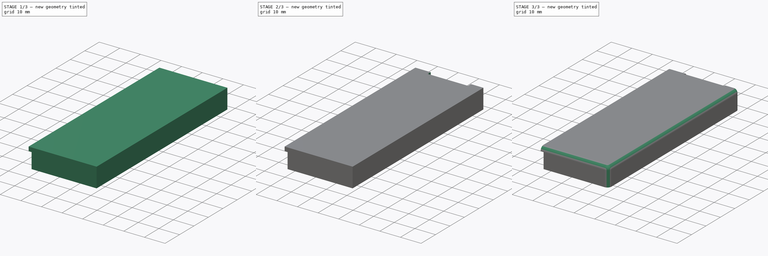
[diagram: build sequence overview — one tinted view per stage of 3, left to right]
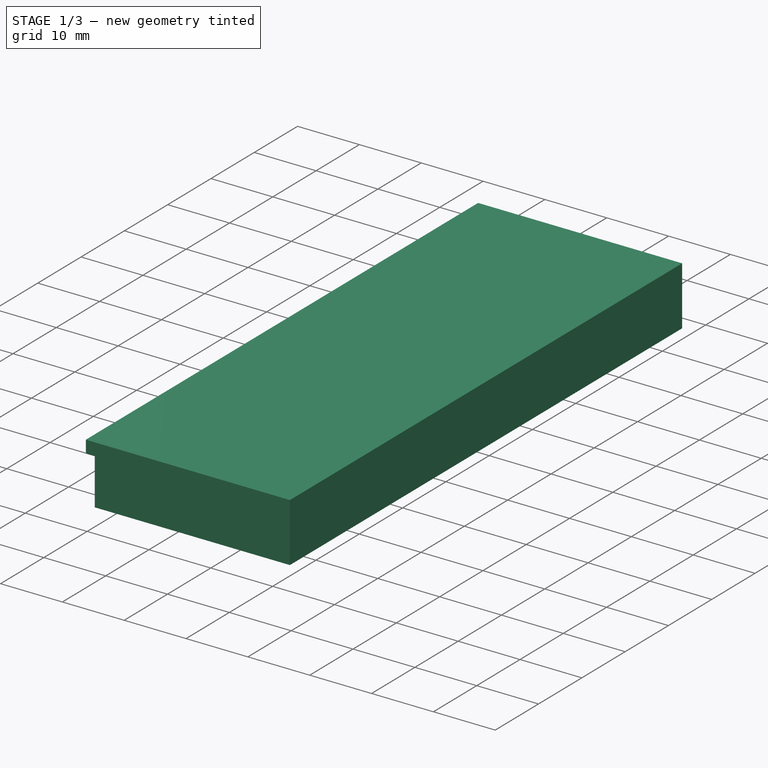
[diagram: stage 1 of 3 — iso view after this stage's code; geometry added in this stage tinted green]
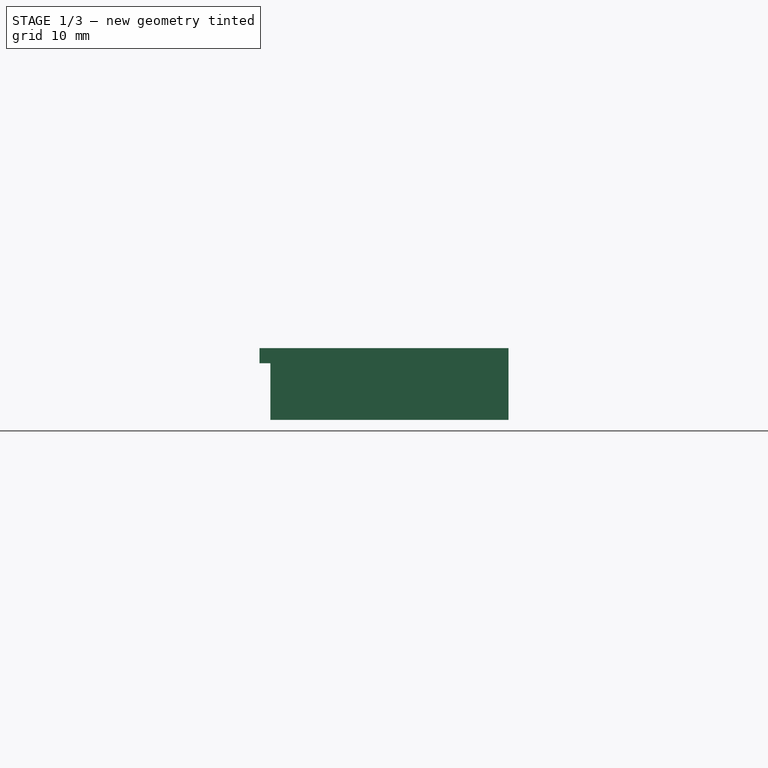
[diagram: stage 1 of 3 — front view after this stage's code; geometry added in this stage tinted green]
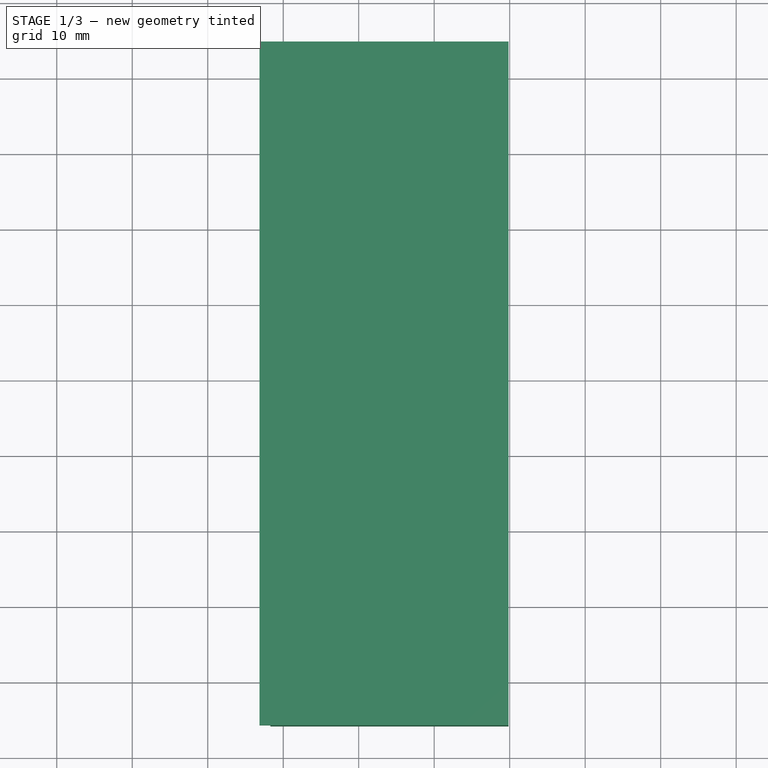
[diagram: stage 1 of 3 — top view after this stage's code; geometry added in this stage tinted green]
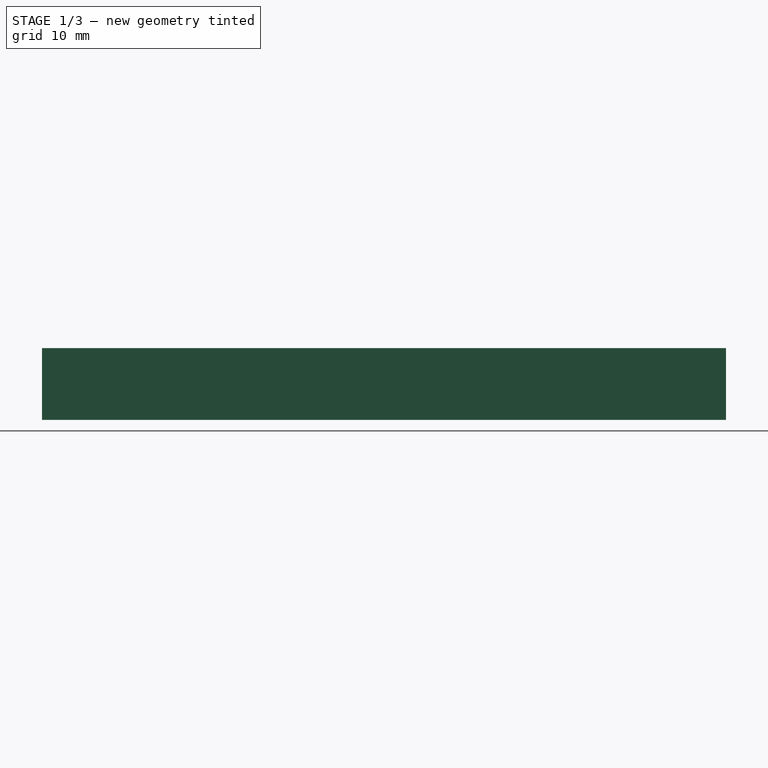
[diagram: stage 1 of 3 — right view after this stage's code; geometry added in this stage tinted green]
FCSTD DOCUMENT  (FreeCAD 1.0R38806 (Git))
Label: Top_Extension_Model
License: All rights reserved
LicenseURL: https://en.wikipedia.org/wiki/All_rights_reserved
objects: Sketcher::SketchObject×4, PartDesign::Pad×2, PartDesign::Pocket×2, PartDesign::Fillet×2, PartDesign::Plane×1, PartDesign::Body×1
note: 28 computed .brp shape members not serialized (recipe doc carries the construction recipe); baked Part::Feature solids carry a one-line shape summary decoded from their .brp

FEATURE [PartDesign::Plane] DatumPlane001  label="DatumPlaneTop"
  AttachmentOffset = pos=(0,0,-2) rot=(0,0,1;0rad)
  AttachmentSupport = -> [XY_Plane001]
  Length = 102.386
  MapMode = 5
  Placement = pos=(0,0,-2) rot=(0,0,1;0rad)
  ResizeMode = 0
  Width = 108.136
FEATURE [Sketcher::SketchObject] Sketch005
  ArcFitTolerance = 1e-06
  FullyConstrained = true
  MakeInternals = false
  MapMode = 5
  sketch-geometry (4):
    g0: LineSegment StartX=26.85 StartY=44.8 StartZ=0 EndX=26.85 EndY=-45.8 EndZ=0
    g1: LineSegment StartX=26.85 StartY=-45.8 StartZ=0 EndX=59.85 EndY=-45.8 EndZ=0
    g2: LineSegment StartX=59.85 StartY=-45.8 StartZ=0 EndX=59.85 EndY=44.8 EndZ=0
    g3: LineSegment StartX=59.85 StartY=44.8 StartZ=0 EndX=26.85 EndY=44.8 EndZ=0
  constraints (12):
    c: Coincident(g0,g1)
    c: Coincident(g1,g2)
    c: Coincident(g2,g3)
    c: Coincident(g3,g0)
    c: Vertical(g0)
    c: Vertical(g2)
    c: Horizontal(g1)
    c: Horizontal(g3)
    c: Distance(g0,g-1) = 44.8
    c: Distance(g0,g-2) = 26.85
    c: Distance(g0,g-1) = 45.8
    c: DistanceX(g3,g3) = 33
FEATURE [PartDesign::Pad] Pad002
  Direction = (0,0,1)
  Length = 2
  Length2 = 10
  Profile = -> Sketch005
  ReferenceAxis = -> Sketch005 [N_Axis]
  Refine = true
  Reversed = true
  Suppressed = false
  Type = 0
FEATURE [Sketcher::SketchObject] Sketch006
  ArcFitTolerance = 1e-06
  FullyConstrained = true
  MakeInternals = false
  MapMode = 5
  sketch-geometry (4):
    g0: LineSegment StartX=28.3 StartY=44.8 StartZ=0 EndX=28.3 EndY=-45.8 EndZ=0
    g1: LineSegment StartX=28.3 StartY=-45.8 StartZ=0 EndX=59.85 EndY=-45.8 EndZ=0
    g2: LineSegment StartX=59.85 StartY=-45.8 StartZ=0 EndX=59.85 EndY=44.8 EndZ=0
    g3: LineSegment StartX=59.85 StartY=44.8 StartZ=0 EndX=28.3 EndY=44.8 EndZ=0
  constraints (12):
    c: Coincident(g0,g1)
    c: Coincident(g1,g2)
    c: Coincident(g2,g3)
    c: Coincident(g3,g0)
    c: Vertical(g0)
    c: Vertical(g2)
    c: Horizontal(g1)
    c: Horizontal(g3)
    c: Distance(g0,g-1) = 44.8
    c: Distance(g0,g-2) = 28.3
    c: Distance(g0,g-1) = 45.8
    c: DistanceX(g3,g3) = 31.55
FEATURE [PartDesign::Pad] Pad003
  BaseFeature = -> Pad002
  Direction = (0,0,1)
  Length = 9.5
  Length2 = 10
  Profile = -> Sketch006
  ReferenceAxis = -> Sketch006 [N_Axis]
  Refine = true
  Reversed = true
  Suppressed = false
  Type = 0
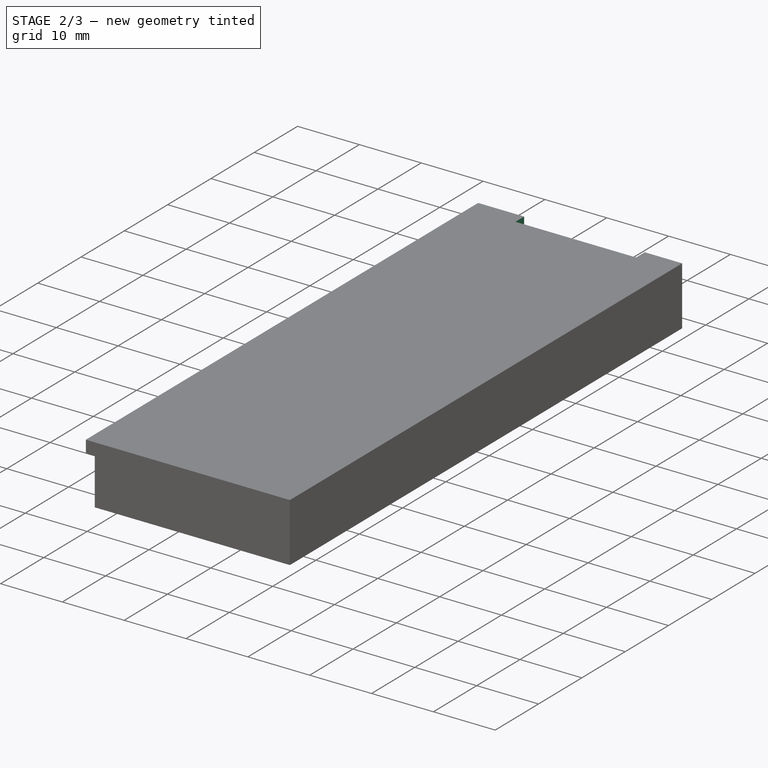
[diagram: stage 2 of 3 — iso view after this stage's code; geometry added in this stage tinted green]
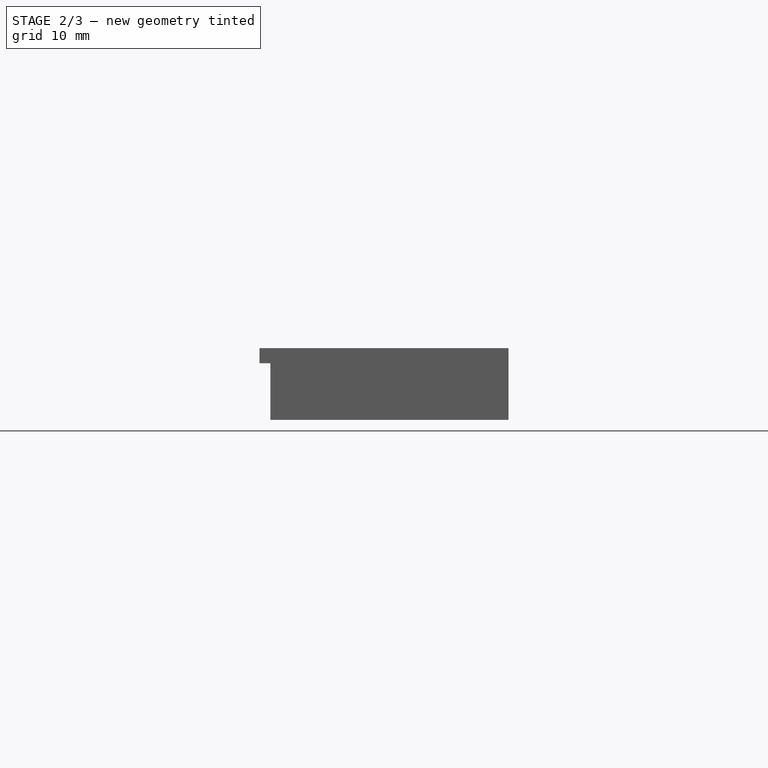
[diagram: stage 2 of 3 — front view after this stage's code; geometry added in this stage tinted green]
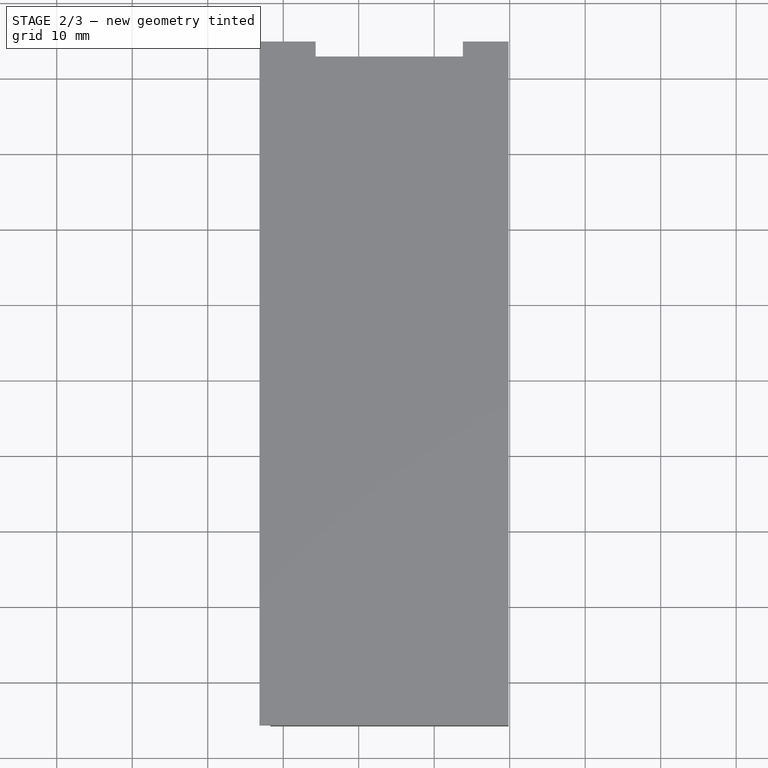
[diagram: stage 2 of 3 — top view after this stage's code; geometry added in this stage tinted green]
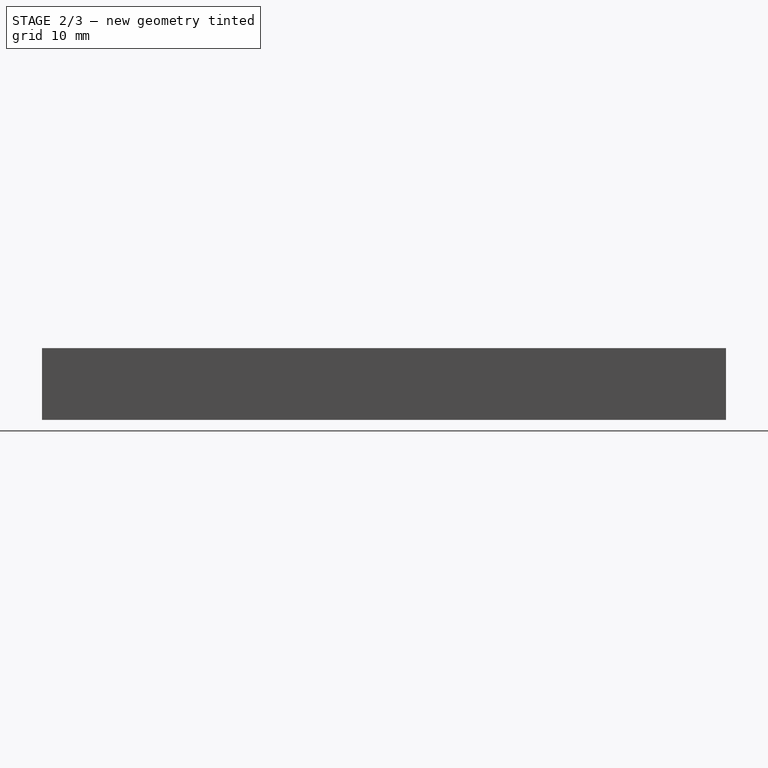
[diagram: stage 2 of 3 — right view after this stage's code; geometry added in this stage tinted green]
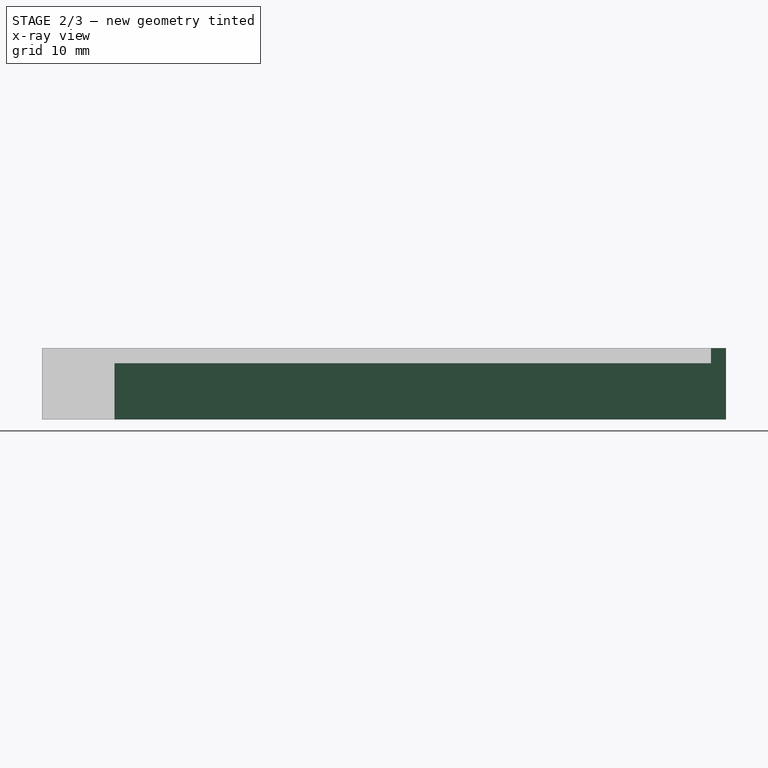
[diagram: stage 2 of 3 — x-ray composite at the right view; earlier geometry ghosted, this stage's added geometry solid]
FEATURE [Sketcher::SketchObject] Sketch007
  ArcFitTolerance = 1e-06
  AttachmentSupport = -> [DatumPlane001]
  FullyConstrained = true
  MakeInternals = false
  MapMode = 5
  Placement = pos=(0,0,-2) rot=(0,0,1;0rad)
  sketch-geometry (4):
    g0: LineSegment StartX=30.3 StartY=42.8 StartZ=0 EndX=30.3 EndY=-36.2 EndZ=0
    g1: LineSegment StartX=30.3 StartY=-36.2 StartZ=0 EndX=57.8 EndY=-36.2 EndZ=0
    g2: LineSegment StartX=57.8 StartY=-36.2 StartZ=0 EndX=57.8 EndY=42.8 EndZ=0
    g3: LineSegment StartX=57.8 StartY=42.8 StartZ=0 EndX=30.3 EndY=42.8 EndZ=0
  constraints (12):
    c: Coincident(g0,g1)
    c: Coincident(g1,g2)
    c: Coincident(g2,g3)
    c: Coincident(g3,g0)
    c: Vertical(g0)
    c: Vertical(g2)
    c: Horizontal(g1)
    c: Horizontal(g3)
    c: Distance(g0,g-1) = 42.8
    c: Distance(g0,g-2) = 30.3
    c: Distance(g0,g-1) = 36.2
    c: DistanceX(g3,g3) = 27.5
FEATURE [PartDesign::Pocket] Pocket003
  BaseFeature = -> Pad003
  Direction = (0,0,-1)
  Length = 5
  Length2 = 5
  Profile = -> Sketch007
  ReferenceAxis = -> Sketch007 [N_Axis]
  Refine = true
  Suppressed = false
  Type = 1
FEATURE [Sketcher::SketchObject] Sketch008
  ArcFitTolerance = 1e-06
  AttachmentSupport = -> [DatumPlane001]
  FullyConstrained = true
  MakeInternals = false
  MapMode = 5
  Placement = pos=(0,0,-2) rot=(0,0,1;0rad)
  sketch-geometry (4):
    g0: LineSegment StartX=34.3 StartY=50 StartZ=0 EndX=34.3 EndY=42.8 EndZ=0
    g1: LineSegment StartX=34.3 StartY=42.8 StartZ=0 EndX=53.8 EndY=42.8 EndZ=0
    g2: LineSegment StartX=53.8 StartY=42.8 StartZ=0 EndX=53.8 EndY=50 EndZ=0
    g3: LineSegment StartX=53.8 StartY=50 StartZ=0 EndX=34.3 EndY=50 EndZ=0
  constraints (12):
    c: Coincident(g0,g1)
    c: Coincident(g1,g2)
    c: Coincident(g2,g3)
    c: Coincident(g3,g0)
    c: Vertical(g0)
    c: Vertical(g2)
    c: Horizontal(g1)
    c: Horizontal(g3)
    c: Distance(g0,g-1) = 50
    c: Distance(g0,g-2) = 34.3
    c: DistanceX(g3,g3) = 19.5
    c: Distance(g0,g-1) = 42.8
FEATURE [PartDesign::Pocket] Pocket004
  BaseFeature = -> Pocket003
  Direction = (0,0,-1)
  Length = 5
  Length2 = 5
  Midplane = true
  Profile = -> Sketch008
  ReferenceAxis = -> Sketch008 [N_Axis]
  Refine = true
  Suppressed = false
  Type = 1
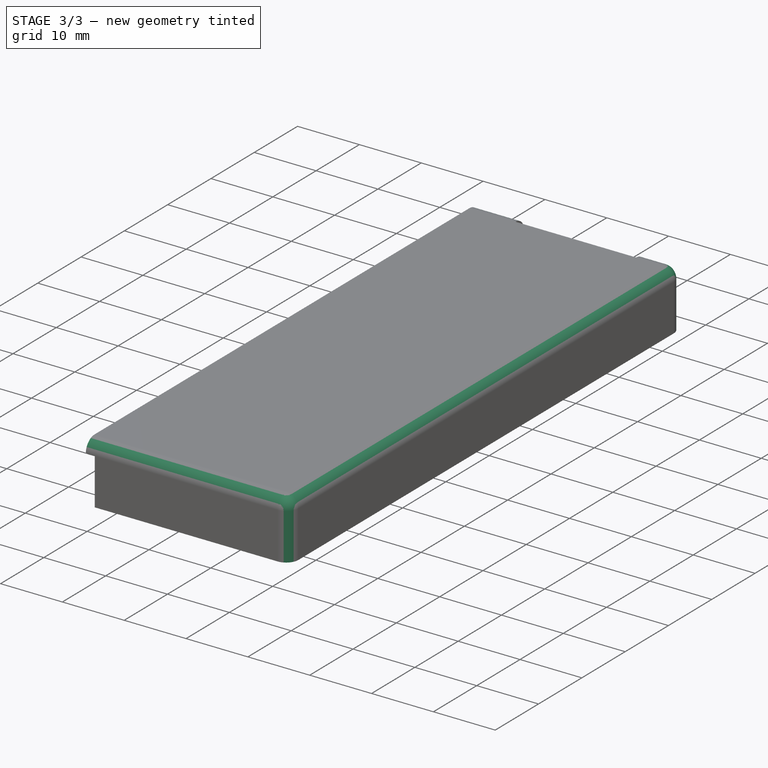
[diagram: stage 3 of 3 — iso view after this stage's code; geometry added in this stage tinted green]
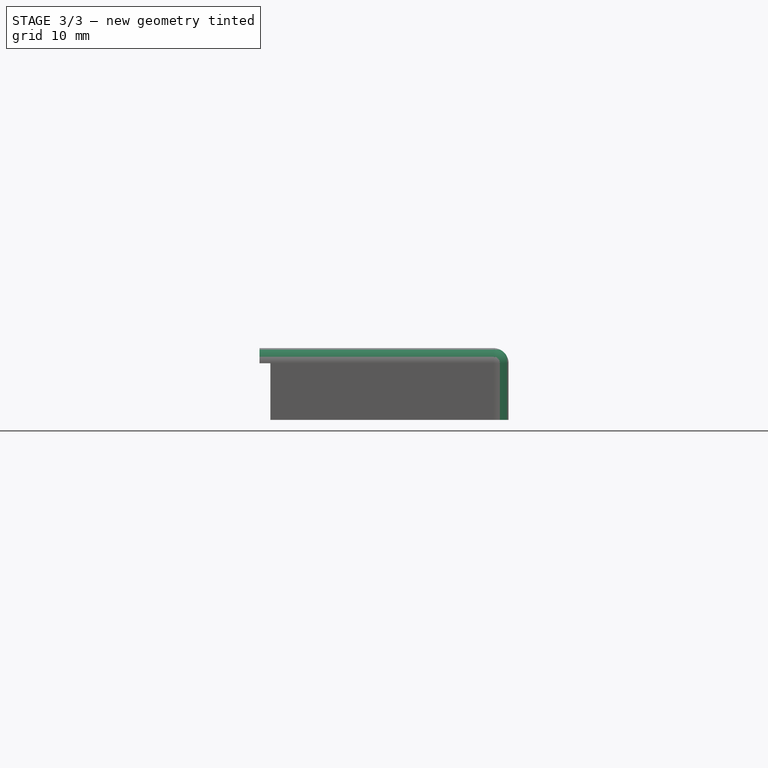
[diagram: stage 3 of 3 — front view after this stage's code; geometry added in this stage tinted green]
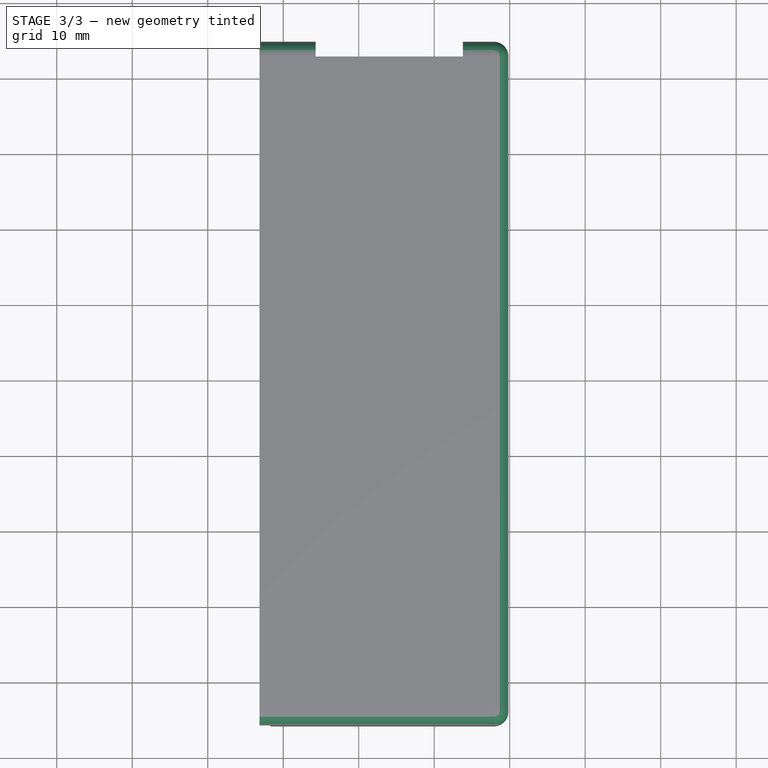
[diagram: stage 3 of 3 — top view after this stage's code; geometry added in this stage tinted green]
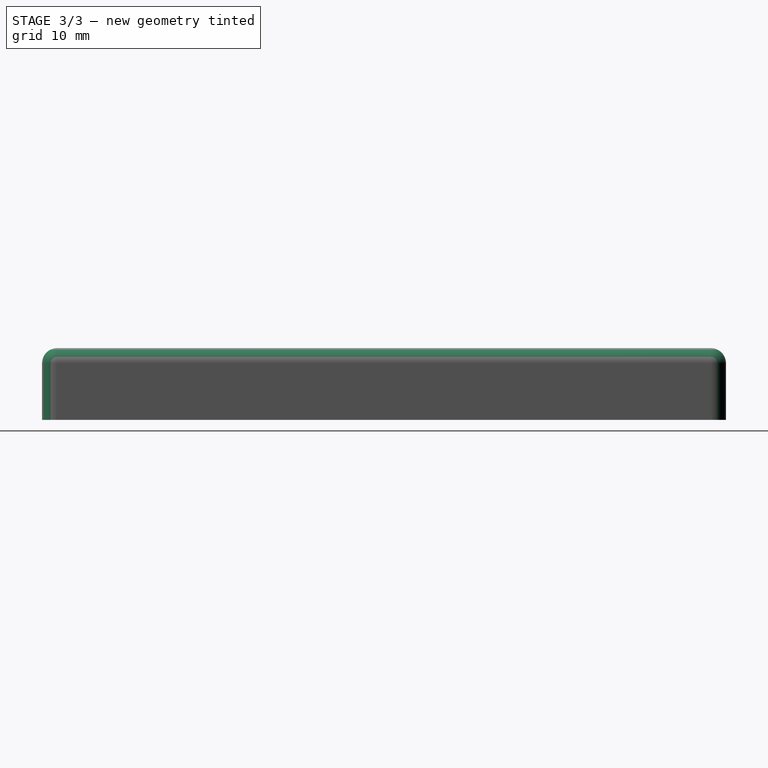
[diagram: stage 3 of 3 — right view after this stage's code; geometry added in this stage tinted green]
FEATURE [PartDesign::Fillet] Fillet001
  Base = -> Pocket004 [Edge14,Edge15,Edge19,Edge5,Edge33,Edge13]
  BaseFeature = -> Pocket004
  Radius = 2
  Refine = true
  SupportTransform = false
  Suppressed = false
  UseAllEdges = false
FEATURE [PartDesign::Fillet] Fillet003
  Base = -> Fillet001 [Edge62,Edge61,Edge59,Edge60]
  BaseFeature = -> Fillet001
  Radius = 1
  Refine = true
  SupportTransform = false
  Suppressed = false
  UseAllEdges = false
FEATURE [PartDesign::Body] Body001  label="Extension_For_Top"
  AllowCompound = false
  Group = -> [Sketch005,Pad002,Sketch006,Pad003,DatumPlane001,Sketch007,Pocket003,Sketch008,Pocket004,Fillet001,Fillet003]
  Origin = -> Origin001
  Tip = -> Fillet003
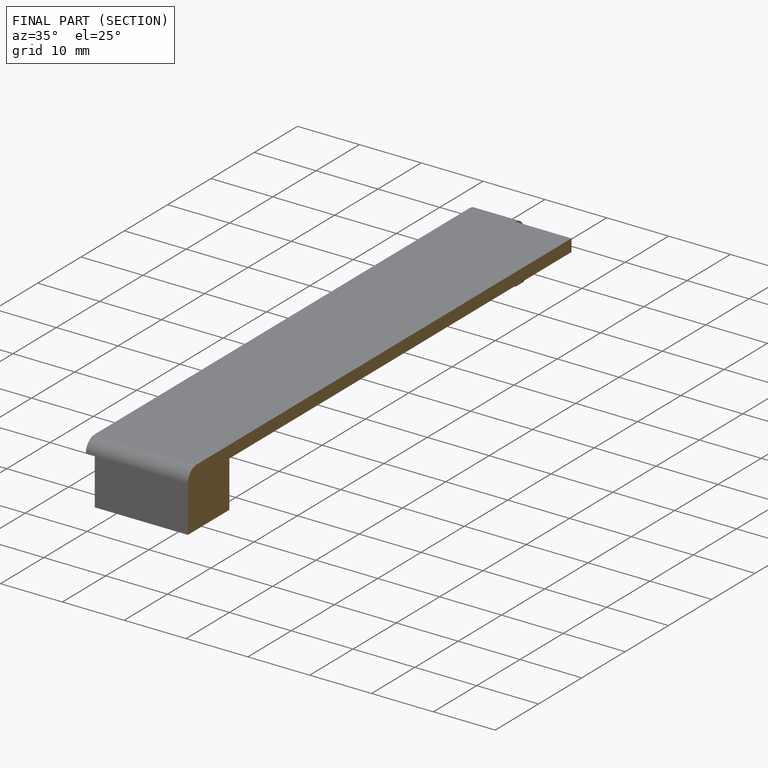
[diagram: finished part — half-section view (interior)]
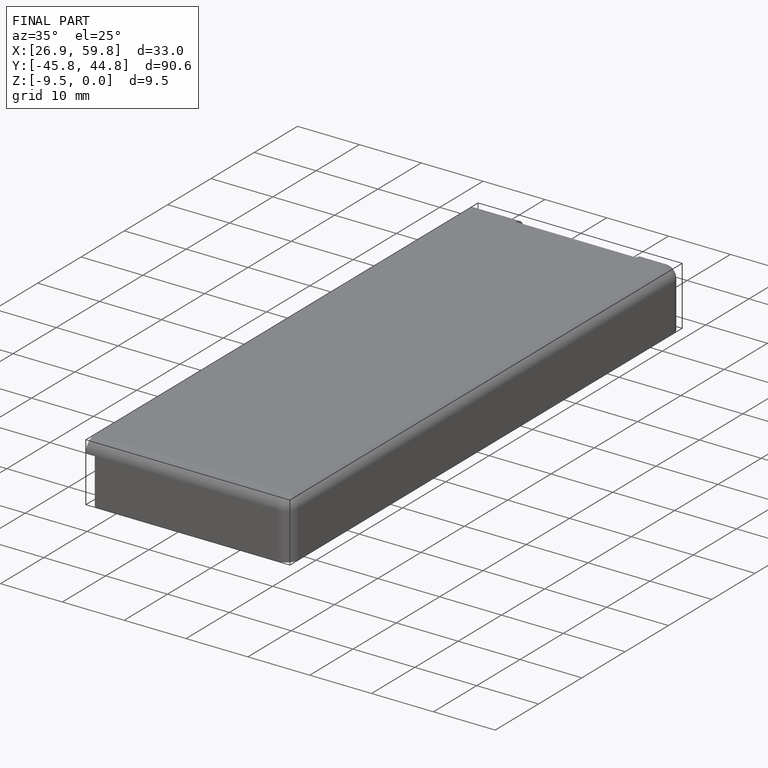
[diagram: finished part — iso view with bounding-box wireframe]
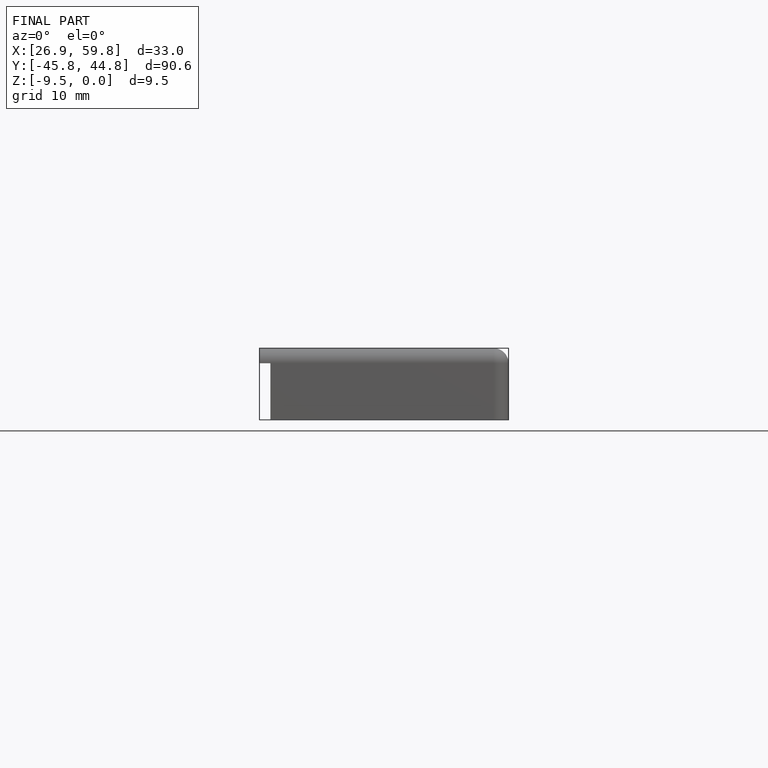
[diagram: finished part — front view with bounding-box wireframe]
